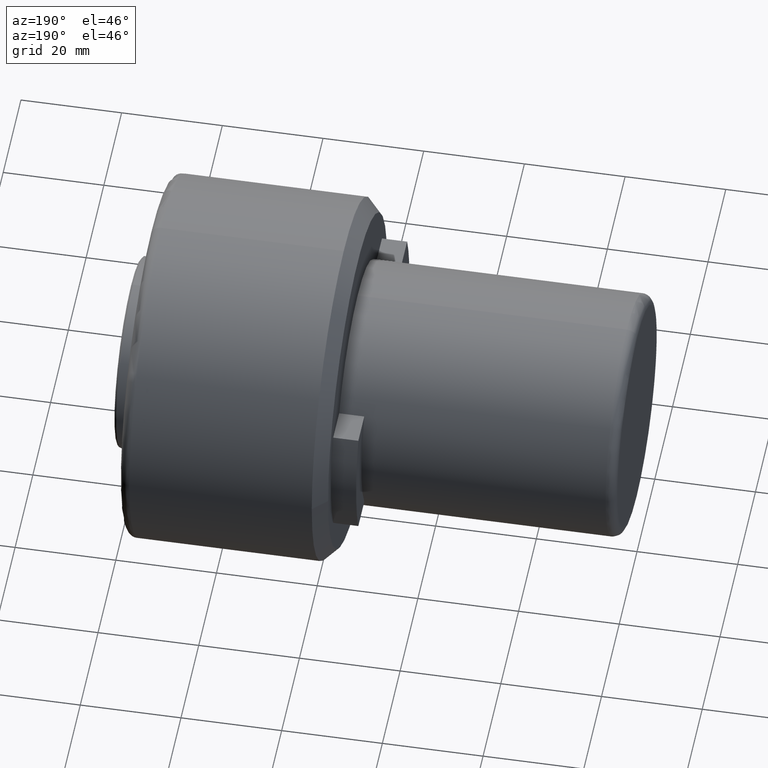
[diagram: clean part render]
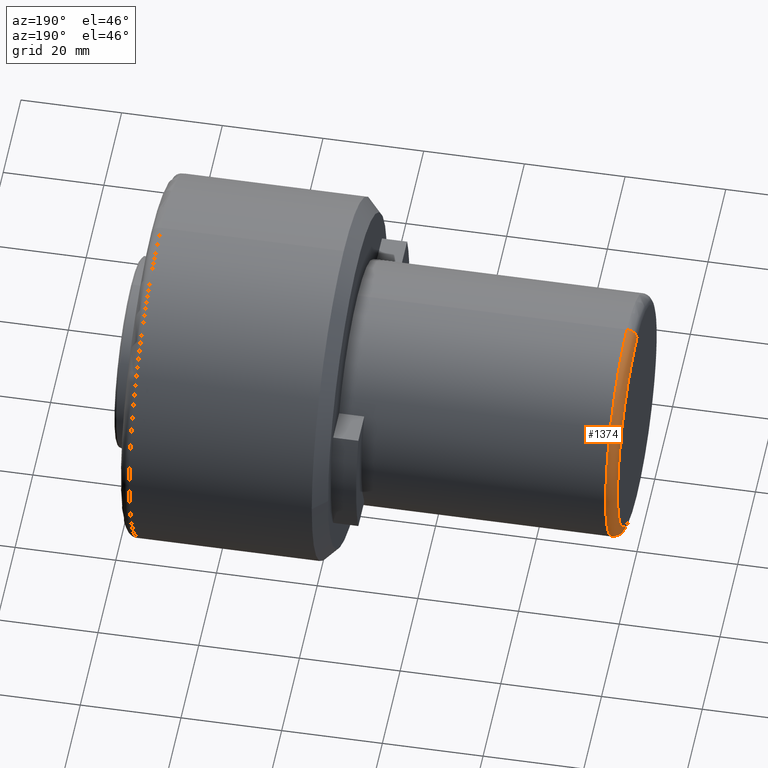
[diagram: same view with one face highlighted and labeled with its STEP entity id]
A machine part, auxiliary view. The second image highlights one B-rep face of the part: STEP entity #1374.
In plain terms, the highlighted toroidal blend (fillet) surface has major radius 22 mm and minor (blend) radius 2 mm.
Its self-contained STEP definition (entity closure, byte-faithful):
#103 = CIRCLE ( 'NONE', #649, 2.000000000000001800 ) ;
#108 = AXIS2_PLACEMENT_3D ( 'NONE', #443, #1036, #359 ) ;
#125 = DIRECTION ( 'NONE',  ( 0.0000000000000000000, 1.000000000000000000, 1.224646799147353200E-016 ) ) ;
#144 = EDGE_CURVE ( 'NONE', #1296, #898, #103, .T. ) ;
#231 = CIRCLE ( 'NONE', #578, 24.00000000000000000 ) ;
#273 = CARTESIAN_POINT ( 'NONE',  ( 2.000000000000001800, 0.0000000000000000000, -7.733975497063264400E-015 ) ) ;
#275 = EDGE_CURVE ( 'NONE', #552, #279, #1085, .T. ) ;
#279 = VERTEX_POINT ( 'NONE', #1130 ) ;
#294 = EDGE_CURVE ( 'NONE', #1296, #552, #231, .T. ) ;
#359 = DIRECTION ( 'NONE',  ( 0.0000000000000000000, 0.0000000000000000000, -1.000000000000000000 ) ) ;
#385 = ORIENTED_EDGE ( 'NONE', *, *, #1026, .F. ) ;
#433 = CARTESIAN_POINT ( 'NONE',  ( 2.000000000000001800, 2.939152317953648700E-015, -24.00000000000001100 ) ) ;
#443 = CARTESIAN_POINT ( 'NONE',  ( 2.000000000000001800, 0.0000000000000000000, 21.99999999999999300 ) ) ;
#485 = CARTESIAN_POINT ( 'NONE',  ( 2.000000000000001800, 0.0000000000000000000, -7.733975497063264400E-015 ) ) ;
#486 = AXIS2_PLACEMENT_3D ( 'NONE', #485, #690, #907 ) ;
#513 = EDGE_LOOP ( 'NONE', ( #1045, #1369, #385, #703 ) ) ;
#552 = VERTEX_POINT ( 'NONE', #671 ) ;
#578 = AXIS2_PLACEMENT_3D ( 'NONE', #273, #975, #1141 ) ;
#649 = AXIS2_PLACEMENT_3D ( 'NONE', #863, #125, #1193 ) ;
#670 = CIRCLE ( 'NONE', #1229, 22.00000000000000000 ) ;
#671 = CARTESIAN_POINT ( 'NONE',  ( 2.000000000000001800, 0.0000000000000000000, 23.99999999999999300 ) ) ;
#690 = DIRECTION ( 'NONE',  ( -1.000000000000000000, 0.0000000000000000000, 0.0000000000000000000 ) ) ;
#703 = ORIENTED_EDGE ( 'NONE', *, *, #275, .F. ) ;
#760 = FACE_OUTER_BOUND ( 'NONE', #513, .T. ) ;
#832 = CARTESIAN_POINT ( 'NONE',  ( 0.0000000000000000000, 2.816687638038912400E-015, -22.00000000000000700 ) ) ;
#863 = CARTESIAN_POINT ( 'NONE',  ( 2.000000000000001800, 2.694222958124176800E-015, -22.00000000000000700 ) ) ;
#898 = VERTEX_POINT ( 'NONE', #832 ) ;
#907 = DIRECTION ( 'NONE',  ( 0.0000000000000000000, 0.0000000000000000000, 1.000000000000000000 ) ) ;
#975 = DIRECTION ( 'NONE',  ( 1.000000000000000000, -0.0000000000000000000, -0.0000000000000000000 ) ) ;
#1026 = EDGE_CURVE ( 'NONE', #279, #898, #670, .T. ) ;
#1031 = TOROIDAL_SURFACE ( 'NONE', #486, 22.00000000000000000, 2.000000000000000000 ) ;
#1036 = DIRECTION ( 'NONE',  ( 0.0000000000000000000, -1.000000000000000000, 0.0000000000000000000 ) ) ;
#1045 = ORIENTED_EDGE ( 'NONE', *, *, #294, .F. ) ;
#1080 = DIRECTION ( 'NONE',  ( 0.0000000000000000000, 0.0000000000000000000, 1.000000000000000000 ) ) ;
#1085 = CIRCLE ( 'NONE', #108, 2.000000000000001800 ) ;
#1130 = CARTESIAN_POINT ( 'NONE',  ( 0.0000000000000000000, 0.0000000000000000000, 21.99999999999999300 ) ) ;
#1141 = DIRECTION ( 'NONE',  ( 0.0000000000000000000, 0.0000000000000000000, 1.000000000000000000 ) ) ;
#1150 = CARTESIAN_POINT ( 'NONE',  ( 0.0000000000000000000, 0.0000000000000000000, -7.733975497063264400E-015 ) ) ;
#1192 = DIRECTION ( 'NONE',  ( -1.000000000000000000, 0.0000000000000000000, 0.0000000000000000000 ) ) ;
#1193 = DIRECTION ( 'NONE',  ( 0.0000000000000000000, -1.224646799147351500E-016, 1.000000000000000000 ) ) ;
#1229 = AXIS2_PLACEMENT_3D ( 'NONE', #1150, #1192, #1080 ) ;
#1296 = VERTEX_POINT ( 'NONE', #433 ) ;
#1369 = ORIENTED_EDGE ( 'NONE', *, *, #144, .T. ) ;
#1374 = ADVANCED_FACE ( 'NONE', ( #760 ), #1031, .T. ) ;